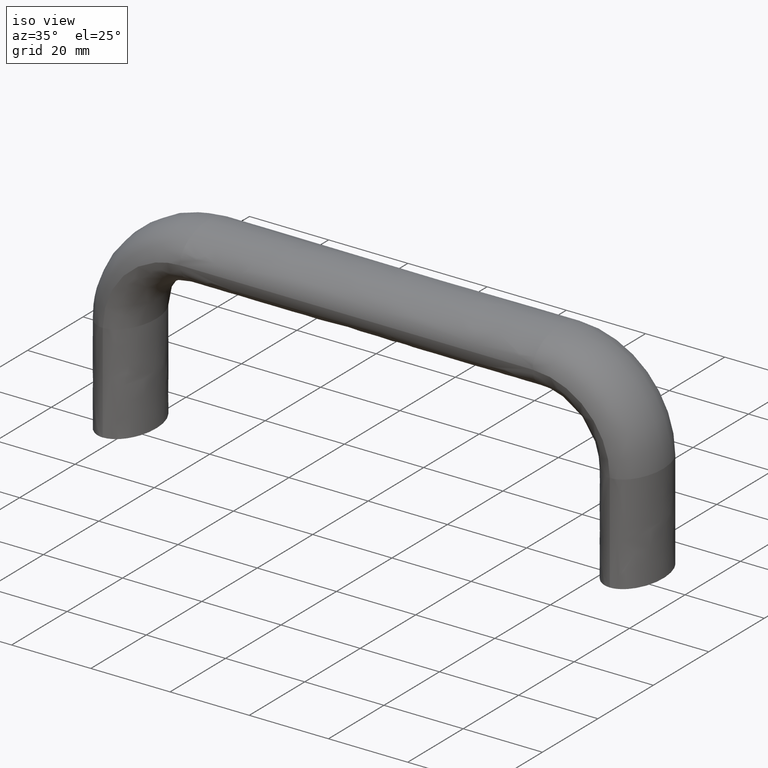
[diagram: clean part render]
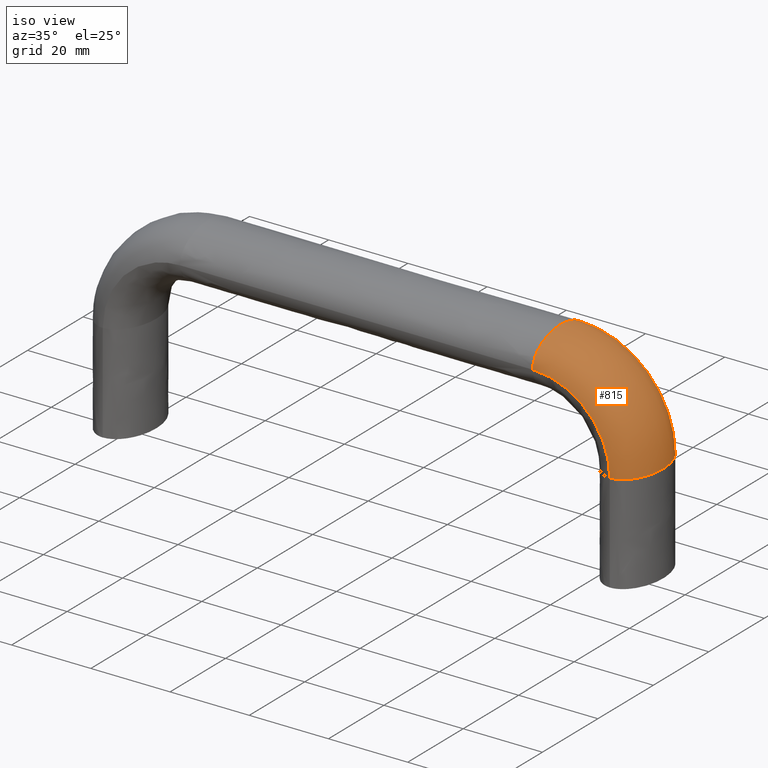
[diagram: same view with one face highlighted and labeled with its STEP entity id]
A machine part, iso view. The second image highlights one B-rep face of the part: STEP entity #815.
In plain terms, the highlighted face is a freeform B-spline surface patch.
Its self-contained STEP definition (entity closure, byte-faithful):
#457=CARTESIAN_POINT('',(130.765148685643200,9.039503756692850,25.0));
#458=VERTEX_POINT('',#457);
#459=CARTESIAN_POINT('',(128.000006999999810,-10.0,25.0));
#460=VERTEX_POINT('',#459);
#461=CARTESIAN_POINT('',(130.765148685643200,9.039503756692850,25.0));
#462=CARTESIAN_POINT('',(131.442849478044910,8.550381046451999,25.0));
#463=CARTESIAN_POINT('',(132.066757527716500,7.885596350320671,25.0));
#464=CARTESIAN_POINT('',(133.799481873463610,5.219866587632820,25.0));
#465=CARTESIAN_POINT('',(134.500007000000010,2.617993877991495,25.0));
#466=CARTESIAN_POINT('',(134.500007000000010,-2.617993877991495,25.0));
#467=CARTESIAN_POINT('',(133.799481873463610,-5.219866587632820,25.0));
#468=CARTESIAN_POINT('',(131.392920281961210,-8.922269036098131,25.0));
#469=CARTESIAN_POINT('',(129.701703020694200,-10.0,25.0));
#470=CARTESIAN_POINT('',(128.000006999999810,-10.0,25.0));
#471=B_SPLINE_CURVE_WITH_KNOTS('',3,(#461,#462,#463,#464,#465,#466,#467,#468,#469,#470),.UNSPECIFIED.,.F.,.U.,(4,2,2,2,4),(0.570000000013989,0.625000000000000,0.750000000000000,0.875000000000000,1.0),.UNSPECIFIED.);
#472=EDGE_CURVE('',#458,#460,#471,.T.);
#562=CARTESIAN_POINT('',(128.000006999999810,10.0,25.0));
#563=VERTEX_POINT('',#562);
#564=CARTESIAN_POINT('',(128.000006999999810,10.0,25.0));
#565=CARTESIAN_POINT('',(128.952956771779100,10.0,25.0));
#566=CARTESIAN_POINT('',(129.902620404600700,9.662023569585280,25.0));
#567=CARTESIAN_POINT('',(130.765148685643200,9.039503756692850,25.0));
#568=B_SPLINE_CURVE_WITH_KNOTS('',3,(#564,#565,#566,#567),.UNSPECIFIED.,.F.,.U.,(4,4),(0.500000000000000,0.570000000013990),.UNSPECIFIED.);
#569=EDGE_CURVE('',#563,#458,#568,.T.);
#603=CARTESIAN_POINT('',(124.870789612510190,8.755444309227862,25.0));
#604=VERTEX_POINT('',#603);
#618=CARTESIAN_POINT('',(124.870789612510190,8.755444309227862,25.0));
#619=CARTESIAN_POINT('',(125.826128193000600,9.558561397034485,25.0));
#620=CARTESIAN_POINT('',(126.910921546568700,10.0,25.0));
#621=CARTESIAN_POINT('',(128.000006999999810,10.0,25.0));
#622=B_SPLINE_CURVE_WITH_KNOTS('',3,(#618,#619,#620,#621),.UNSPECIFIED.,.F.,.U.,(4,4),(0.419999999986289,0.500000000000000),.UNSPECIFIED.);
#623=EDGE_CURVE('',#604,#563,#622,.T.);
#628=CARTESIAN_POINT('',(108.500007000000000,8.755444309434322,41.370790612755883));
#629=CARTESIAN_POINT('',(108.500007000000000,9.558561397185795,42.326129193372502));
#630=CARTESIAN_POINT('',(108.500007000000000,10.0,43.410922546755401));
#631=CARTESIAN_POINT('',(108.500007000000000,10.0,46.201704020694301));
#632=CARTESIAN_POINT('',(108.500007000000000,8.922269036098131,47.892921281961200));
#633=CARTESIAN_POINT('',(108.500007000000000,5.219866587632820,50.299482873463603));
#634=CARTESIAN_POINT('',(108.500007000000000,2.617993877991495,51.000007999999902));
#635=CARTESIAN_POINT('',(108.500007000000000,-2.617993877991495,51.000007999999902));
#636=CARTESIAN_POINT('',(108.500007000000000,-5.219866587632820,50.299482873463603));
#637=CARTESIAN_POINT('',(108.500007000000000,-8.922269036098131,47.892921281961200));
#638=CARTESIAN_POINT('',(108.500007000000000,-10.0,46.201704020694301));
#639=CARTESIAN_POINT('',(108.500007000000000,-10.0,44.500007999999852));
#640=CARTESIAN_POINT('',(110.643237786038500,8.755444309434322,41.361462487404737));
#641=CARTESIAN_POINT('',(110.768311226766600,9.558561397185795,42.316505935076087));
#642=CARTESIAN_POINT('',(110.910333084833000,10.0,43.400986049985583));
#643=CARTESIAN_POINT('',(111.275704385608410,10.0,46.191028352413603));
#644=CARTESIAN_POINT('',(111.497120124804000,8.922269036098131,47.881850823062599));
#645=CARTESIAN_POINT('',(111.812189611127810,5.219866587632820,50.287901282744599));
#646=CARTESIAN_POINT('',(111.903903107425190,2.617993877991495,50.988287623581812));
#647=CARTESIAN_POINT('',(111.903903107425190,-2.617993877991495,50.988287623581812));
#648=CARTESIAN_POINT('',(111.812189611127810,-5.219866587632820,50.287901282744599));
#649=CARTESIAN_POINT('',(111.497120124804000,-8.922269036098131,47.881850823053000));
#650=CARTESIAN_POINT('',(111.275704385608410,-10.0,46.191028352413603));
#651=CARTESIAN_POINT('',(111.052917007086800,-10.0,44.489783046055052));
#652=CARTESIAN_POINT('',(112.785024816611100,8.755444309434322,40.944694918080380));
#653=CARTESIAN_POINT('',(113.035082674914190,9.558561397185795,41.875168590091583));
#654=CARTESIAN_POINT('',(113.319025046922310,10.0,42.931727673305332));
#655=CARTESIAN_POINT('',(114.049506210898000,10.0,45.649872568246998));
#656=CARTESIAN_POINT('',(114.492178761621200,8.922269036098131,47.297071966642797));
#657=CARTESIAN_POINT('',(115.122091181823190,5.219866587632820,49.640997195244097));
#658=CARTESIAN_POINT('',(115.305452156013800,2.617993877991495,50.323289525999797));
#659=CARTESIAN_POINT('',(115.305452156013800,-2.617993877991495,50.323289525999797));
#660=CARTESIAN_POINT('',(115.122091181823190,-5.219866587632820,49.640997195244097));
#661=CARTESIAN_POINT('',(114.492178761621200,-8.922269036098131,47.297071966642797));
#662=CARTESIAN_POINT('',(114.049506210898000,-10.0,45.649872568246998));
#663=CARTESIAN_POINT('',(113.604090867010400,-10.0,43.992467144502079));
#664=CARTESIAN_POINT('',(116.744643744892600,8.755444309434322,39.304567056153523));
#665=CARTESIAN_POINT('',(117.225770380791800,9.558561397185795,40.139328906642490));
#666=CARTESIAN_POINT('',(117.772092896542700,10.0,41.087206575818250));
#667=CARTESIAN_POINT('',(119.177583399422800,10.0,43.525753447844252));
#668=CARTESIAN_POINT('',(120.029312501532600,8.922269036098131,45.003516074876998));
#669=CARTESIAN_POINT('',(121.241302581399000,5.219866587632820,47.106336842509513));
#670=CARTESIAN_POINT('',(121.594100326970210,2.617993877991495,47.718446164587199));
#671=CARTESIAN_POINT('',(121.594100326970210,-2.617993877991495,47.718446164587199));
#672=CARTESIAN_POINT('',(121.241302581399000,-5.219866587632820,47.106336842509513));
#673=CARTESIAN_POINT('',(120.029312501532600,-8.922269036098131,45.003516074876998));
#674=CARTESIAN_POINT('',(119.177583399422800,-10.0,43.525753447844252));
#675=CARTESIAN_POINT('',(118.320576995227600,-10.0,42.038834623438163));
#676=CARTESIAN_POINT('',(118.560617836546900,8.755444309434322,38.091171961062983));
#677=CARTESIAN_POINT('',(119.147718032307790,9.558561397185795,38.855124542666474));
#678=CARTESIAN_POINT('',(119.814374234678790,10.0,39.722597813020208));
#679=CARTESIAN_POINT('',(121.529439849049990,10.0,41.954293208727499));
#680=CARTESIAN_POINT('',(122.568771877825000,8.922269036098131,43.306703567755797));
#681=CARTESIAN_POINT('',(124.047716421851600,5.219866587632820,45.231151065126902));
#682=CARTESIAN_POINT('',(124.478221843971990,2.617993877991495,45.791337777728302));
#683=CARTESIAN_POINT('',(124.478221843971990,-2.617993877991495,45.791337777728302));
#684=CARTESIAN_POINT('',(124.047716421851600,-5.219866587632820,45.231151065126902));
#685=CARTESIAN_POINT('',(122.568771877807190,-8.922269036098131,43.306703567755797));
#686=CARTESIAN_POINT('',(121.529439849049990,-10.0,41.954293208727499));
#687=CARTESIAN_POINT('',(120.483668132970000,-10.0,40.593503333296233));
#688=CARTESIAN_POINT('',(121.591178961074110,8.755444309434322,35.060610836557963));
#689=CARTESIAN_POINT('',(122.355131542679500,9.558561397185795,35.647711032320750));
#690=CARTESIAN_POINT('',(123.222604813034910,10.0,36.314367234693300));
#691=CARTESIAN_POINT('',(125.454300208727600,10.0,38.029432849049947));
#692=CARTESIAN_POINT('',(126.806710567756000,8.922269036098131,39.068764877824698));
#693=CARTESIAN_POINT('',(128.731158065118190,5.219866587632820,40.547709421842548));
#694=CARTESIAN_POINT('',(129.291344777728400,2.617993877991495,40.978214843971763));
#695=CARTESIAN_POINT('',(129.291344777728400,-2.617993877991495,40.978214843971763));
#696=CARTESIAN_POINT('',(128.731158065118190,-5.219866587632820,40.547709421842548));
#697=CARTESIAN_POINT('',(126.806710567773610,-8.922269036098131,39.068764877824698));
#698=CARTESIAN_POINT('',(125.454300208727600,-10.0,38.029432849049947));
#699=CARTESIAN_POINT('',(124.093510333305200,-10.0,36.983661132978817));
#700=CARTESIAN_POINT('',(122.804574056211100,8.755444309434322,33.244636744786739));
#701=CARTESIAN_POINT('',(123.639335906701310,9.558561397185795,33.725763380683070));
#702=CARTESIAN_POINT('',(124.587213575877600,10.0,34.272085896433637));
#703=CARTESIAN_POINT('',(127.025760447932600,10.0,35.677576399299248));
#704=CARTESIAN_POINT('',(128.503523074956410,8.922269036098131,36.529305501418051));
#705=CARTESIAN_POINT('',(130.606343842562410,5.219866587632820,37.741295581257752));
#706=CARTESIAN_POINT('',(131.218453164631200,2.617993877991495,38.094093326811297));
#707=CARTESIAN_POINT('',(131.218453164631200,-2.617993877991495,38.094093326811297));
#708=CARTESIAN_POINT('',(130.606343842562410,-5.219866587632820,37.741295581257752));
#709=CARTESIAN_POINT('',(128.503523074956410,-8.922269036098131,36.529305501418051));
#710=CARTESIAN_POINT('',(127.025760447897200,-10.0,35.677576399299248));
#711=CARTESIAN_POINT('',(125.538841623491090,-10.0,34.820569995112912));
#712=CARTESIAN_POINT('',(124.444701918022200,8.755444309434322,29.285017816717879));
#713=CARTESIAN_POINT('',(125.375175590032200,9.558561397185795,29.535075675023869));
#714=CARTESIAN_POINT('',(126.431734673245600,10.0,29.819018047032110));
#715=CARTESIAN_POINT('',(129.149879568158210,10.0,30.549499211022251));
#716=CARTESIAN_POINT('',(130.797078966562990,8.922269036098131,30.992171761736849));
#717=CARTESIAN_POINT('',(133.141004195190590,5.219866587632820,31.622084181965501));
#718=CARTESIAN_POINT('',(133.823296525955190,2.617993877991495,31.805445156173700));
#719=CARTESIAN_POINT('',(133.823296525955190,-2.617993877991495,31.805445156173700));
#720=CARTESIAN_POINT('',(133.141004195190590,-5.219866587632820,31.622084181965501));
#721=CARTESIAN_POINT('',(130.797078966562990,-8.922269036098131,30.992171761736849));
#722=CARTESIAN_POINT('',(129.149879568193600,-10.0,30.549499211022251));
#723=CARTESIAN_POINT('',(127.492474144448710,-10.0,30.104083867125830));
#724=CARTESIAN_POINT('',(124.870764474806090,8.755444309434322,27.143280771262599));
#725=CARTESIAN_POINT('',(125.826100787056010,9.558561397185795,27.268354742729802));
#726=CARTESIAN_POINT('',(126.910891494318510,10.0,27.410377074515750));
#727=CARTESIAN_POINT('',(129.701665946343410,10.0,27.775749235925701));
#728=CARTESIAN_POINT('',(131.392878781409590,8.922269036098131,27.997165248423698));
#729=CARTESIAN_POINT('',(133.799433911713210,5.219866587632820,28.312234922407551));
#730=CARTESIAN_POINT('',(134.499957125285590,2.617993877991495,28.403948437624699));
#731=CARTESIAN_POINT('',(134.499957125285590,-2.617993877991495,28.403948437624699));
#732=CARTESIAN_POINT('',(133.799433911713210,-5.219866587632820,28.312234922407551));
#733=CARTESIAN_POINT('',(131.392878781409590,-8.922269036098131,27.997165248423698));
#734=CARTESIAN_POINT('',(129.701665946343410,-10.0,27.775749235925701));
#735=CARTESIAN_POINT('',(127.999974207303790,-10.0,27.552961332626950));
#736=CARTESIAN_POINT('',(124.870789612755800,8.755444309434322,25.0));
#737=CARTESIAN_POINT('',(125.826128193372400,9.558561397185795,25.0));
#738=CARTESIAN_POINT('',(126.910921546755400,10.0,25.0));
#739=CARTESIAN_POINT('',(129.701703020694200,10.0,25.0));
#740=CARTESIAN_POINT('',(131.392920281961210,8.922269036098131,25.0));
#741=CARTESIAN_POINT('',(133.799481873463610,5.219866587632820,25.0));
#742=CARTESIAN_POINT('',(134.500007000000010,2.617993877991495,25.0));
#743=CARTESIAN_POINT('',(134.500007000000010,-2.617993877991495,25.0));
#744=CARTESIAN_POINT('',(133.799481873463610,-5.219866587632820,25.0));
#745=CARTESIAN_POINT('',(131.392920281961210,-8.922269036098131,25.0));
#746=CARTESIAN_POINT('',(129.701703020694200,-10.0,25.0));
#747=CARTESIAN_POINT('',(128.000006999999810,-10.0,25.0));
#748=B_SPLINE_SURFACE_WITH_KNOTS('',3,3,((#628,#640,#652,#664,#676,#688,#700,#712,#724,#736),(#629,#641,#653,#665,#677,#689,#701,#713,#725,#737),(#630,#642,#654,#666,#678,#690,#702,#714,#726,#738),(#631,#643,#655,#667,#679,#691,#703,#715,#727,#739),(#632,#644,#656,#668,#680,#692,#704,#716,#728,#740),(#633,#645,#657,#669,#681,#693,#705,#717,#729,#741),(#634,#646,#658,#670,#682,#694,#706,#718,#730,#742),(#635,#647,#659,#671,#683,#695,#707,#719,#731,#743),(#636,#648,#660,#672,#684,#696,#708,#720,#732,#744),(#637,#649,#661,#673,#685,#697,#709,#721,#733,#745),(#638,#650,#662,#674,#686,#698,#710,#722,#734,#746),(#639,#651,#663,#675,#687,#699,#711,#723,#735,#747)),.UNSPECIFIED.,.F.,.F.,.U.,(4,2,2,2,2,4),(4,2,2,2,4),(0.0,4.923917860288095,12.617539516988240,20.311161173688390,28.004782830388539,35.698404487088688),(0.0,10.123008709118061,20.246017418236121,30.369026127354442,40.492034836472527),.UNSPECIFIED.);
#749=ORIENTED_EDGE('',*,*,#623,.F.);
#750=CARTESIAN_POINT('',(108.500007000000000,8.755444309227858,41.370790612510277));
#751=VERTEX_POINT('',#750);
#752=CARTESIAN_POINT('',(108.500007000000000,8.755444309227858,41.370790612510277));
#753=CARTESIAN_POINT('',(110.643237786038500,8.755444309434322,41.361462487404737));
#754=CARTESIAN_POINT('',(112.785024816611100,8.755444309434322,40.944694918080380));
#755=CARTESIAN_POINT('',(116.744643744892600,8.755444309434322,39.304567056153523));
#756=CARTESIAN_POINT('',(118.560617836546900,8.755444309434322,38.091171961062983));
#757=CARTESIAN_POINT('',(121.591178961074110,8.755444309434322,35.060610836557963));
#758=CARTESIAN_POINT('',(122.804574056211100,8.755444309434322,33.244636744786739));
#759=CARTESIAN_POINT('',(124.444701918022200,8.755444309434322,29.285017816717879));
#760=CARTESIAN_POINT('',(124.870764474806090,8.755444309434322,27.143280771262599));
#761=CARTESIAN_POINT('',(124.870789612510190,8.755444309227862,25.0));
#762=B_SPLINE_CURVE_WITH_KNOTS('',3,(#752,#753,#754,#755,#756,#757,#758,#759,#760,#761),.UNSPECIFIED.,.F.,.U.,(4,2,2,2,4),(0.722209962674838,0.760448210040166,0.798686457405494,0.836924704770823,0.875162952136151),.UNSPECIFIED.);
#763=EDGE_CURVE('',#751,#604,#762,.T.);
#764=ORIENTED_EDGE('',*,*,#763,.F.);
#765=CARTESIAN_POINT('',(108.500007000000000,10.0,44.500007999999852));
#766=VERTEX_POINT('',#765);
#767=CARTESIAN_POINT('',(108.500007000000000,8.755444309227858,41.370790612510277));
#768=CARTESIAN_POINT('',(108.500007000000000,9.558561397034483,42.326129193000668));
#769=CARTESIAN_POINT('',(108.500007000000000,10.0,43.410922546568749));
#770=CARTESIAN_POINT('',(108.500007000000000,10.0,44.500007999999852));
#771=B_SPLINE_CURVE_WITH_KNOTS('',3,(#767,#768,#769,#770),.UNSPECIFIED.,.F.,.U.,(4,4),(0.419999999986289,0.500000000000000),.UNSPECIFIED.);
#772=EDGE_CURVE('',#751,#766,#771,.T.);
#773=ORIENTED_EDGE('',*,*,#772,.T.);
#774=CARTESIAN_POINT('',(108.500007000000000,9.039503756692849,47.265149685643273));
#775=VERTEX_POINT('',#774);
#776=CARTESIAN_POINT('',(108.500007000000000,10.0,44.500007999999852));
#777=CARTESIAN_POINT('',(108.500007000000000,10.0,45.452957771779197));
#778=CARTESIAN_POINT('',(108.500007000000000,9.662023569585280,46.402621404600751));
#779=CARTESIAN_POINT('',(108.500007000000000,9.039503756692849,47.265149685643273));
#780=B_SPLINE_CURVE_WITH_KNOTS('',3,(#776,#777,#778,#779),.UNSPECIFIED.,.F.,.U.,(4,4),(0.500000000000000,0.570000000013990),.UNSPECIFIED.);
#781=EDGE_CURVE('',#766,#775,#780,.T.);
#782=ORIENTED_EDGE('',*,*,#781,.T.);
#783=CARTESIAN_POINT('',(108.500007000000000,-10.0,44.500007999999852));
#784=VERTEX_POINT('',#783);
#785=CARTESIAN_POINT('',(108.500007000000000,9.039503756692849,47.265149685643273));
#786=CARTESIAN_POINT('',(108.500007000000000,8.550381046451996,47.942850478044889));
#787=CARTESIAN_POINT('',(108.500007000000000,7.885596350320669,48.566758527716537));
#788=CARTESIAN_POINT('',(108.500007000000000,5.219866587632820,50.299482873463603));
#789=CARTESIAN_POINT('',(108.500007000000000,2.617993877991495,51.000007999999902));
#790=CARTESIAN_POINT('',(108.500007000000000,-2.617993877991495,51.000007999999902));
#791=CARTESIAN_POINT('',(108.500007000000000,-5.219866587632820,50.299482873463603));
#792=CARTESIAN_POINT('',(108.500007000000000,-8.922269036098131,47.892921281961200));
#793=CARTESIAN_POINT('',(108.500007000000000,-10.0,46.201704020694301));
#794=CARTESIAN_POINT('',(108.500007000000000,-10.0,44.500007999999852));
#795=B_SPLINE_CURVE_WITH_KNOTS('',3,(#785,#786,#787,#788,#789,#790,#791,#792,#793,#794),.UNSPECIFIED.,.F.,.U.,(4,2,2,2,4),(0.570000000013989,0.625000000000000,0.750000000000000,0.875000000000000,1.0),.UNSPECIFIED.);
#796=EDGE_CURVE('',#775,#784,#795,.T.);
#797=ORIENTED_EDGE('',*,*,#796,.T.);
#798=CARTESIAN_POINT('',(108.500007000000000,-10.0,44.500007999999852));
#799=CARTESIAN_POINT('',(111.052917007086800,-10.0,44.489783046055052));
#800=CARTESIAN_POINT('',(113.604090867010400,-10.0,43.992467144502079));
#801=CARTESIAN_POINT('',(118.320576995227600,-10.0,42.038834623438163));
#802=CARTESIAN_POINT('',(120.483668132970000,-10.0,40.593503333296233));
#803=CARTESIAN_POINT('',(124.093510333305200,-10.0,36.983661132978817));
#804=CARTESIAN_POINT('',(125.538841623491090,-10.0,34.820569995112912));
#805=CARTESIAN_POINT('',(127.492474144448710,-10.0,30.104083867125830));
#806=CARTESIAN_POINT('',(127.999974207303790,-10.0,27.552961332626950));
#807=CARTESIAN_POINT('',(128.000006999999810,-10.0,25.0));
#808=B_SPLINE_CURVE_WITH_KNOTS('',3,(#798,#799,#800,#801,#802,#803,#804,#805,#806,#807),.UNSPECIFIED.,.F.,.U.,(4,2,2,2,4),(0.722209962674838,0.760448210040166,0.798686457405494,0.836924704770823,0.875162952136151),.UNSPECIFIED.);
#809=EDGE_CURVE('',#784,#460,#808,.T.);
#810=ORIENTED_EDGE('',*,*,#809,.T.);
#811=ORIENTED_EDGE('',*,*,#472,.F.);
#812=ORIENTED_EDGE('',*,*,#569,.F.);
#813=EDGE_LOOP('',(#749,#764,#773,#782,#797,#810,#811,#812));
#814=FACE_OUTER_BOUND('',#813,.T.);
#815=ADVANCED_FACE('',(#814),#748,.T.);